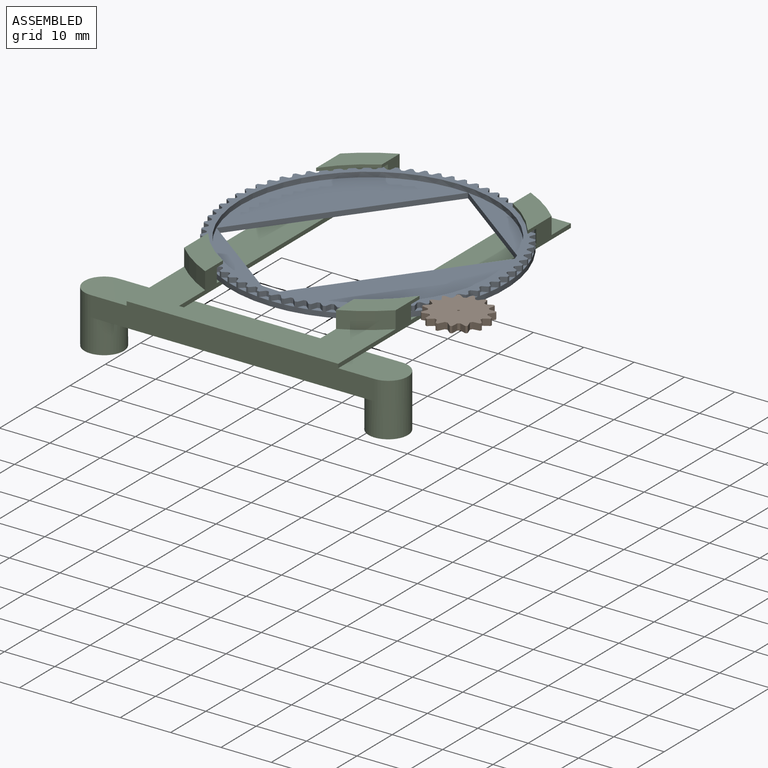
[diagram: assembled view]
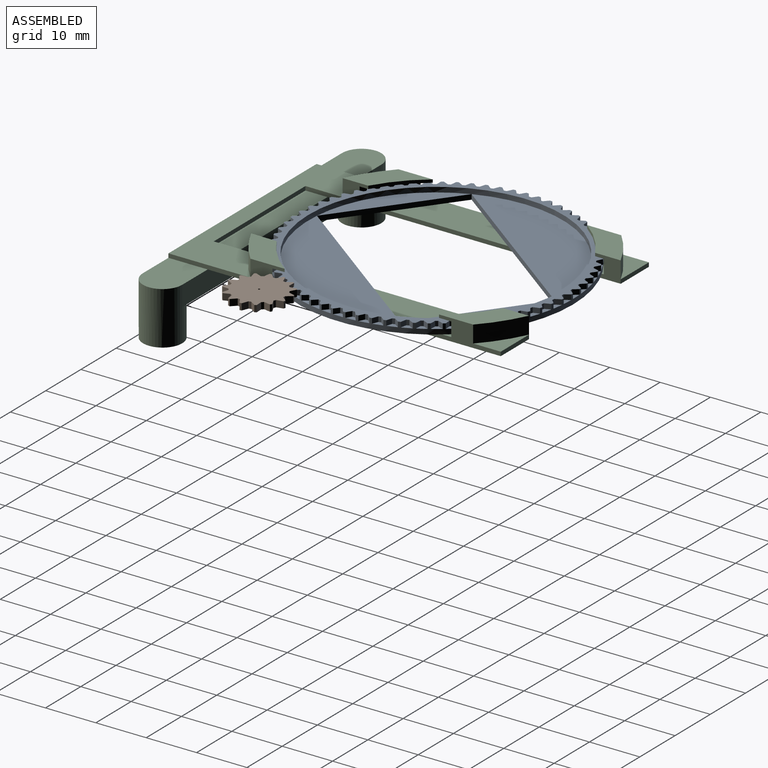
[diagram: assembled view, second angle]
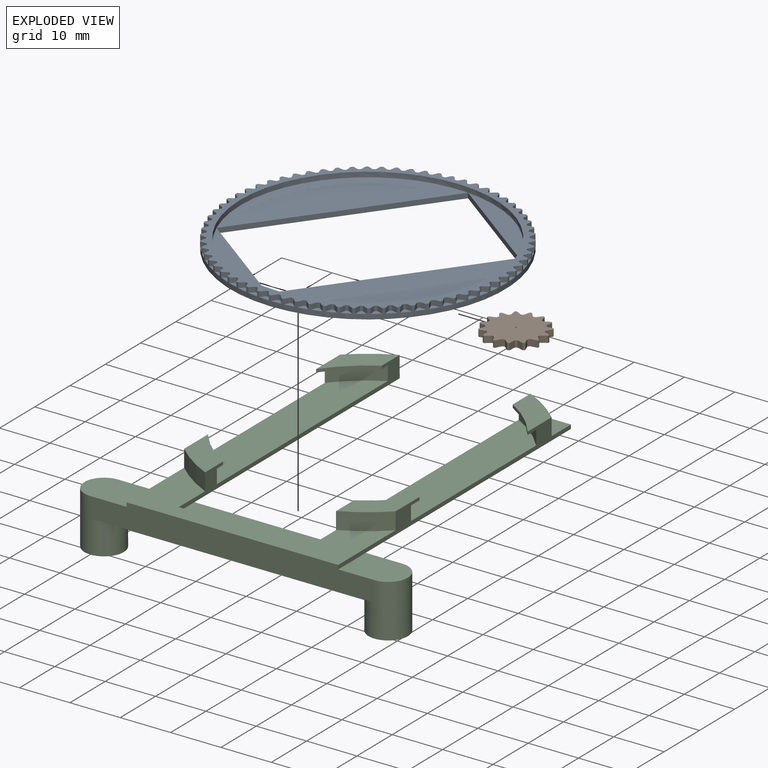
[diagram: exploded view]
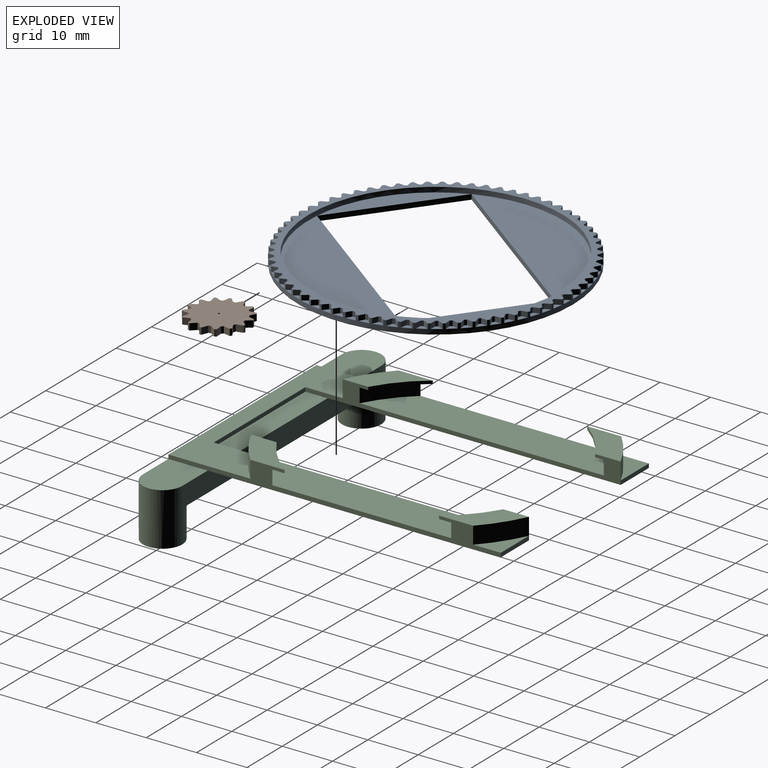
[diagram: exploded view, second angle]
ASSEMBLY  parts=3 mates=2
PART A: 292 faces, bbox 54.6x54.6x2 mm
  f0: cylinder r=27.3mm len=54.6mm, axis (0,0,-1), area 204.9mm2, adj f9,f11,f12,f13,f14,f16,f17,f18
  f1: plane 43.11x12.05mm, normal (0,0,1), area 367.1mm2, adj f6,f10
  f2: plane 26.5x3.75mm, normal (0,0,1), area 67.2mm2, adj f5,f10
  f3: plane 43.11x12.05mm, normal (0,0,1), area 367.1mm2, adj f8,f10
  f4: plane 26.5x3.75mm, normal (0,0,1), area 67.2mm2, adj f7,f10
  f5: plane 26.5x1mm, normal (1,0,0), area 26.5mm2, adj f2,f6,f8,f9
  f6: plane 43.11x1mm, normal (0,-1,0), area 43.1mm2, adj f1,f5,f7,f9
  f7: plane 26.5x1mm, normal (-1,0,0), area 26.5mm2, adj f4,f6,f8,f9
  f8: plane 43.11x1mm, normal (0,1,0), area 43.1mm2, adj f3,f5,f7,f9
  f9: plane 54.6x54.6mm, normal (0,0,-1), area 1199.1mm2, adj f0,f5,f6,f7,f8
  f10: cylinder r=25.3mm len=50.6mm, axis (0,0,-1), area 159mm2, adj f1,f2,f3,f4,f11
  f11: plane 54.6x54.56mm, normal (0,0,1), area 243.8mm2, adj f0,f10,f13,f14,f15,f17,f18,f19
  f12: plane 1.97x1mm, normal (0,0,1), area 1.2mm2, adj f0,f13,f14,f15
  f13: plane 1x0.98mm, normal (0.8,0.6,0), area 1.2mm2, adj f0,f11,f12,f15
  f14: plane 1x0.98mm, normal (-0.8,0.6,0), area 1.2mm2, adj f0,f11,f12,f15
  f15: plane 1x0.5mm, normal (0,1,0), area 0.5mm2, adj f11,f12,f13,f14
  f16: plane 1.97x1.09mm, normal (0,0,1), area 1.2mm2, adj f0,f17,f18,f19
  f17: plane 1x0.91mm, normal (0.74,0.67,0), area 1.2mm2, adj f0,f11,f16,f19
  f18: plane 1.04x1mm, normal (-0.85,0.53,0), area 1.2mm2, adj f0,f11,f16,f19
  f19: plane 1x0.5mm, normal (-0.09,1,0), area 0.5mm2, adj f11,f16,f17,f18
  f20: plane 1.94x1.19mm, normal (0,0,1), area 1.2mm2, adj f0,f21,f22,f23
  f21: plane 1x0.9mm, normal (0.68,0.73,0), area 1.2mm2, adj f0,f11,f20,f23
  f22: plane 1.1x1mm, normal (-0.89,0.45,0), area 1.2mm2, adj f0,f11,f20,f23
  f23: plane 1x0.49mm, normal (-0.18,0.98,0), area 0.5mm2, adj f11,f20,f21,f22
  f24: plane 1.9x1.28mm, normal (0,0,1), area 1.2mm2, adj f0,f25,f26,f27
  f25: plane 1x0.97mm, normal (0.61,0.79,0), area 1.2mm2, adj f0,f11,f24,f27
  f26: plane 1.14x1mm, normal (-0.93,0.37,0), area 1.2mm2, adj f0,f11,f24,f27
  f27: plane 1x0.48mm, normal (-0.27,0.96,0), area 0.5mm2, adj f11,f24,f25,f26
  f28: plane 1.85x1.35mm, normal (0,0,1), area 1.2mm2, adj f0,f29,f30,f31
  f29: plane 1.03x1mm, normal (0.54,0.84,0), area 1.2mm2, adj f0,f11,f28,f31
  f30: plane 1.18x1mm, normal (-0.96,0.28,0), area 1.2mm2, adj f0,f11,f28,f31
  f31: plane 1x0.47mm, normal (-0.35,0.94,0), area 0.5mm2, adj f11,f28,f29,f30
  f32: plane 1.78x1.42mm, normal (0,0,1), area 1.2mm2, adj f0,f33,f34,f35
  f33: plane 1.09x1mm, normal (0.46,0.89,0), area 1.2mm2, adj f0,f11,f32,f35
  f34: plane 1.2x1mm, normal (-0.98,0.19,0), area 1.2mm2, adj f0,f11,f32,f35
  f35: plane 1x0.45mm, normal (-0.43,0.9,0), area 0.5mm2, adj f11,f32,f33,f34
  f36: plane 1.69x1.48mm, normal (0,0,1), area 1.2mm2, adj f0,f37,f38,f39
  f37: plane 1.14x1mm, normal (0.38,0.93,0), area 1.2mm2, adj f0,f11,f36,f39
  f38: plane 1.22x1mm, normal (-0.99,0.1,0), area 1.2mm2, adj f0,f11,f36,f39
  f39: plane 1x0.43mm, normal (-0.51,0.86,0), area 0.5mm2, adj f11,f36,f37,f38
  f40: plane 1.6x1.52mm, normal (0,0,1), area 1.2mm2, adj f0,f41,f42,f43
  f41: plane 1.17x1mm, normal (0.29,0.96,0), area 1.2mm2, adj f0,f11,f40,f43
  f42: plane 1.23x1mm, normal (-1,0.02,0), area 1.2mm2, adj f0,f11,f40,f43
  f43: plane 1x0.4mm, normal (-0.59,0.81,0), area 0.5mm2, adj f11,f40,f41,f42
  f44: plane 1.58x1.55mm, normal (0,0,1), area 1.2mm2, adj f0,f45,f46,f47
  f45: plane 1.2x1mm, normal (0.21,0.98,0), area 1.2mm2, adj f0,f11,f44,f47
  f46: plane 1.22x1mm, normal (-1,-0.07,0), area 1.2mm2, adj f0,f11,f44,f47
  f47: plane 1x0.38mm, normal (-0.66,0.75,0), area 0.5mm2, adj f11,f44,f45,f46
  f48: plane 1.57x1.56mm, normal (0,0,1), area 1.2mm2, adj f0,f49,f50,f51
  f49: plane 1.22x1mm, normal (0.12,0.99,0), area 1.2mm2, adj f0,f11,f48,f51
  f50: plane 1.21x1mm, normal (-0.99,-0.16,0), area 1.2mm2, adj f0,f11,f48,f51
  f51: plane 1x0.36mm, normal (-0.72,0.69,0), area 0.5mm2, adj f11,f48,f49,f50
  f52: plane 1.58x1.54mm, normal (0,0,1), area 1.2mm2, adj f0,f53,f54,f55
  f53: plane 1.23x1mm, normal (0.03,1,0), area 1.2mm2, adj f0,f11,f52,f55
  f54: plane 1.19x1mm, normal (-0.97,-0.25,0), area 1.2mm2, adj f0,f11,f52,f55
  f55: plane 1x0.39mm, normal (-0.78,0.62,0), area 0.5mm2, adj f11,f52,f53,f54
  f56: plane 1.65x1.5mm, normal (0,0,1), area 1.2mm2, adj f0,f57,f58,f59
  f57: plane 1.23x1mm, normal (-0.06,1,0), area 1.2mm2, adj f0,f11,f56,f59
  f58: plane 1.16x1mm, normal (-0.94,-0.34,0), area 1.2mm2, adj f0,f11,f56,f59
  f59: plane 1x0.42mm, normal (-0.83,0.55,0), area 0.5mm2, adj f11,f56,f57,f58
  f60: plane 1.74x1.45mm, normal (0,0,1), area 1.2mm2, adj f0,f61,f62,f63
  f61: plane 1.21x1mm, normal (-0.15,0.99,0), area 1.2mm2, adj f0,f11,f60,f63
  f62: plane 1.11x1mm, normal (-0.91,-0.42,0), area 1.2mm2, adj f0,f11,f60,f63
  f63: plane 1x0.44mm, normal (-0.88,0.47,0), area 0.5mm2, adj f11,f60,f61,f62
  f64: plane 1.81x1.39mm, normal (0,0,1), area 1.2mm2, adj f0,f65,f66,f67
  f65: plane 1.19x1mm, normal (-0.24,0.97,0), area 1.2mm2, adj f0,f11,f64,f67
  f66: plane 1.06x1mm, normal (-0.87,-0.5,0), area 1.2mm2, adj f0,f11,f64,f67
  f67: plane 1x0.46mm, normal (-0.92,0.39,0), area 0.5mm2, adj f11,f64,f65,f66
  f68: plane 1.88x1.32mm, normal (0,0,1), area 1.2mm2, adj f0,f69,f70,f71
  f69: plane 1.16x1mm, normal (-0.32,0.95,0), area 1.2mm2, adj f0,f11,f68,f71
  f70: plane 1x1mm, normal (-0.82,-0.58,0), area 1.2mm2, adj f0,f11,f68,f71
  f71: plane 1x0.48mm, normal (-0.95,0.31,0), area 0.5mm2, adj f11,f68,f69,f70
  f72: plane 1.92x1.23mm, normal (0,0,1), area 1.2mm2, adj f0,f73,f74,f75
  f73: plane 1.12x1mm, normal (-0.41,0.91,0), area 1.2mm2, adj f0,f11,f72,f75
  f74: plane 1x0.94mm, normal (-0.76,-0.65,0), area 1.2mm2, adj f0,f11,f72,f75
  f75: plane 1x0.49mm, normal (-0.97,0.22,0), area 0.5mm2, adj f11,f72,f73,f74
  f76: plane 1.96x1.14mm, normal (0,0,1), area 1.2mm2, adj f0,f77,f78,f79
  f77: plane 1.07x1mm, normal (-0.49,0.87,0), area 1.2mm2, adj f0,f11,f76,f79
  f78: plane 1x0.87mm, normal (-0.7,-0.71,0), area 1.2mm2, adj f0,f11,f76,f79
  f79: plane 1x0.5mm, normal (-0.99,0.13,0), area 0.5mm2, adj f11,f76,f77,f78
  f80: plane 1.97x1.04mm, normal (0,0,1), area 1.2mm2, adj f0,f81,f82,f83
  f81: plane 1.01x1mm, normal (-0.56,0.83,0), area 1.2mm2, adj f0,f11,f80,f83
  f82: plane 1x0.95mm, normal (-0.64,-0.77,0), area 1.2mm2, adj f0,f11,f80,f83
  f83: plane 1x0.5mm, normal (-1,0.04,0), area 0.5mm2, adj f11,f80,f81,f82
  f84: plane 1.97x1.04mm, normal (0,0,1), area 1.2mm2, adj f0,f85,f86,f87
  f85: plane 1x0.95mm, normal (-0.64,0.77,0), area 1.2mm2, adj f0,f11,f84,f87
  f86: plane 1.01x1mm, normal (-0.56,-0.83,0), area 1.2mm2, adj f0,f11,f84,f87
  f87: plane 1x0.5mm, normal (-1,-0.04,0), area 0.5mm2, adj f11,f84,f85,f86
  f88: plane 1.96x1.14mm, normal (0,0,1), area 1.2mm2, adj f0,f89,f90,f91
  f89: plane 1x0.87mm, normal (-0.7,0.71,0), area 1.2mm2, adj f0,f11,f88,f91
  f90: plane 1.07x1mm, normal (-0.49,-0.87,0), area 1.2mm2, adj f0,f11,f88,f91
  f91: plane 1x0.5mm, normal (-0.99,-0.13,0), area 0.5mm2, adj f11,f88,f89,f90
  f92: plane 1.92x1.23mm, normal (0,0,1), area 1.2mm2, adj f0,f93,f94,f95
  f93: plane 1x0.94mm, normal (-0.76,0.65,0), area 1.2mm2, adj f0,f11,f92,f95
  f94: plane 1.12x1mm, normal (-0.41,-0.91,0), area 1.2mm2, adj f0,f11,f92,f95
  f95: plane 1x0.49mm, normal (-0.97,-0.22,0), area 0.5mm2, adj f11,f92,f93,f94
  f96: plane 1.88x1.32mm, normal (0,0,1), area 1.2mm2, adj f0,f97,f98,f99
  f97: plane 1x1mm, normal (-0.82,0.58,0), area 1.2mm2, adj f0,f11,f96,f99
  f98: plane 1.16x1mm, normal (-0.32,-0.95,0), area 1.2mm2, adj f0,f11,f96,f99
  f99: plane 1x0.48mm, normal (-0.95,-0.31,0), area 0.5mm2, adj f11,f96,f97,f98
  f100: plane 1.81x1.39mm, normal (0,0,1), area 1.2mm2, adj f0,f101,f102,f103
  f101: plane 1.06x1mm, normal (-0.87,0.5,0), area 1.2mm2, adj f0,f11,f100,f103
  f102: plane 1.19x1mm, normal (-0.24,-0.97,0), area 1.2mm2, adj f0,f11,f100,f103
  f103: plane 1x0.46mm, normal (-0.92,-0.39,0), area 0.5mm2, adj f11,f100,f101,f102
  f104: plane 1.74x1.45mm, normal (0,0,1), area 1.2mm2, adj f0,f105,f106,f107
  f105: plane 1.11x1mm, normal (-0.91,0.42,0), area 1.2mm2, adj f0,f11,f104,f107
  f106: plane 1.21x1mm, normal (-0.15,-0.99,0), area 1.2mm2, adj f0,f11,f104,f107
  f107: plane 1x0.44mm, normal (-0.88,-0.47,0), area 0.5mm2, adj f11,f104,f105,f106
  f108: plane 1.65x1.5mm, normal (0,0,1), area 1.2mm2, adj f0,f109,f110,f111
  f109: plane 1.16x1mm, normal (-0.94,0.34,0), area 1.2mm2, adj f0,f11,f108,f111
  f110: plane 1.23x1mm, normal (-0.06,-1,0), area 1.2mm2, adj f0,f11,f108,f111
  f111: plane 1x0.42mm, normal (-0.83,-0.55,0), area 0.5mm2, adj f11,f108,f109,f110
  f112: plane 1.58x1.54mm, normal (0,0,1), area 1.2mm2, adj f0,f113,f114,f115
  f113: plane 1.19x1mm, normal (-0.97,0.25,0), area 1.2mm2, adj f0,f11,f112,f115
  f114: plane 1.23x1mm, normal (0.03,-1,0), area 1.2mm2, adj f0,f11,f112,f115
  f115: plane 1x0.39mm, normal (-0.78,-0.62,0), area 0.5mm2, adj f11,f112,f113,f114
  f116: plane 1.57x1.56mm, normal (0,0,1), area 1.2mm2, adj f0,f117,f118,f119
  f117: plane 1.21x1mm, normal (-0.99,0.16,0), area 1.2mm2, adj f0,f11,f116,f119
  f118: plane 1.22x1mm, normal (0.12,-0.99,0), area 1.2mm2, adj f0,f11,f116,f119
  f119: plane 1x0.36mm, normal (-0.72,-0.69,0), area 0.5mm2, adj f11,f116,f117,f118
  f120: plane 1.58x1.55mm, normal (0,0,1), area 1.2mm2, adj f0,f121,f122,f123
  f121: plane 1.22x1mm, normal (-1,0.07,0), area 1.2mm2, adj f0,f11,f120,f123
  f122: plane 1.2x1mm, normal (0.21,-0.98,0), area 1.2mm2, adj f0,f11,f120,f123
  f123: plane 1x0.38mm, normal (-0.66,-0.75,0), area 0.5mm2, adj f11,f120,f121,f122
  f124: plane 1.6x1.52mm, normal (0,0,1), area 1.2mm2, adj f0,f125,f126,f127
  f125: plane 1.23x1mm, normal (-1,-0.02,0), area 1.2mm2, adj f0,f11,f124,f127
  f126: plane 1.17x1mm, normal (0.29,-0.96,0), area 1.2mm2, adj f0,f11,f124,f127
  f127: plane 1x0.4mm, normal (-0.59,-0.81,0), area 0.5mm2, adj f11,f124,f125,f126
  f128: plane 1.69x1.48mm, normal (0,0,1), area 1.2mm2, adj f0,f129,f130,f131
  f129: plane 1.22x1mm, normal (-0.99,-0.1,0), area 1.2mm2, adj f0,f11,f128,f131
  f130: plane 1.14x1mm, normal (0.38,-0.93,0), area 1.2mm2, adj f0,f11,f128,f131
  f131: plane 1x0.43mm, normal (-0.51,-0.86,0), area 0.5mm2, adj f11,f128,f129,f130
  f132: plane 1.78x1.42mm, normal (0,0,1), area 1.2mm2, adj f0,f133,f134,f135
  f133: plane 1.2x1mm, normal (-0.98,-0.19,0), area 1.2mm2, adj f0,f11,f132,f135
  f134: plane 1.09x1mm, normal (0.46,-0.89,0), area 1.2mm2, adj f0,f11,f132,f135
  f135: plane 1x0.45mm, normal (-0.43,-0.9,0), area 0.5mm2, adj f11,f132,f133,f134
  f136: plane 1.85x1.35mm, normal (0,0,1), area 1.2mm2, adj f0,f137,f138,f139
  f137: plane 1.18x1mm, normal (-0.96,-0.28,0), area 1.2mm2, adj f0,f11,f136,f139
  f138: plane 1.03x1mm, normal (0.54,-0.84,0), area 1.2mm2, adj f0,f11,f136,f139
  f139: plane 1x0.47mm, normal (-0.35,-0.94,0), area 0.5mm2, adj f11,f136,f137,f138
  f140: plane 1.9x1.28mm, normal (0,0,1), area 1.2mm2, adj f0,f141,f142,f143
  f141: plane 1.14x1mm, normal (-0.93,-0.37,0), area 1.2mm2, adj f0,f11,f140,f143
  f142: plane 1x0.97mm, normal (0.61,-0.79,0), area 1.2mm2, adj f0,f11,f140,f143
  f143: plane 1x0.48mm, normal (-0.27,-0.96,0), area 0.5mm2, adj f11,f140,f141,f142
  f144: plane 1.94x1.19mm, normal (0,0,1), area 1.2mm2, adj f0,f145,f146,f147
  f145: plane 1.1x1mm, normal (-0.89,-0.45,0), area 1.2mm2, adj f0,f11,f144,f147
  f146: plane 1x0.9mm, normal (0.68,-0.73,0), area 1.2mm2, adj f0,f11,f144,f147
  f147: plane 1x0.49mm, normal (-0.18,-0.98,0), area 0.5mm2, adj f11,f144,f145,f146
  f148: plane 1.97x1.09mm, normal (0,0,1), area 1.2mm2, adj f0,f149,f150,f151
  f149: plane 1.04x1mm, normal (-0.85,-0.53,0), area 1.2mm2, adj f0,f11,f148,f151
  f150: plane 1x0.91mm, normal (0.74,-0.67,0), area 1.2mm2, adj f0,f11,f148,f151
  f151: plane 1x0.5mm, normal (-0.09,-1,0), area 0.5mm2, adj f11,f148,f149,f150
  f152: plane 1.97x1mm, normal (0,0,1), area 1.2mm2, adj f0,f153,f154,f155
  f153: plane 1x0.98mm, normal (-0.8,-0.6,0), area 1.2mm2, adj f0,f11,f152,f155
  f154: plane 1x0.98mm, normal (0.8,-0.6,0), area 1.2mm2, adj f0,f11,f152,f155
  f155: plane 1x0.5mm, normal (0,-1,0), area 0.5mm2, adj f11,f152,f153,f154
  f156: plane 1.97x1.09mm, normal (0,0,1), area 1.2mm2, adj f0,f157,f158,f159
  f157: plane 1x0.91mm, normal (-0.74,-0.67,0), area 1.2mm2, adj f0,f11,f156,f159
  f158: plane 1.04x1mm, normal (0.85,-0.53,0), area 1.2mm2, adj f0,f11,f156,f159
  f159: plane 1x0.5mm, normal (0.09,-1,0), area 0.5mm2, adj f11,f156,f157,f158
  f160: plane 1.94x1.19mm, normal (0,0,1), area 1.2mm2, adj f0,f161,f162,f163
  f161: plane 1x0.9mm, normal (-0.68,-0.73,0), area 1.2mm2, adj f0,f11,f160,f163
  f162: plane 1.1x1mm, normal (0.89,-0.45,0), area 1.2mm2, adj f0,f11,f160,f163
  f163: plane 1x0.49mm, normal (0.18,-0.98,0), area 0.5mm2, adj f11,f160,f161,f162
  f164: plane 1.9x1.28mm, normal (0,0,1), area 1.2mm2, adj f0,f165,f166,f167
  f165: plane 1x0.97mm, normal (-0.61,-0.79,0), area 1.2mm2, adj f0,f11,f164,f167
  f166: plane 1.14x1mm, normal (0.93,-0.37,0), area 1.2mm2, adj f0,f11,f164,f167
  f167: plane 1x0.48mm, normal (0.27,-0.96,0), area 0.5mm2, adj f11,f164,f165,f166
  f168: plane 1.85x1.35mm, normal (0,0,1), area 1.2mm2, adj f0,f169,f170,f171
  f169: plane 1.03x1mm, normal (-0.54,-0.84,0), area 1.2mm2, adj f0,f11,f168,f171
  f170: plane 1.18x1mm, normal (0.96,-0.28,0), area 1.2mm2, adj f0,f11,f168,f171
  f171: plane 1x0.47mm, normal (0.35,-0.94,0), area 0.5mm2, adj f11,f168,f169,f170
  f172: plane 1.78x1.42mm, normal (0,0,1), area 1.2mm2, adj f0,f173,f174,f175
  f173: plane 1.09x1mm, normal (-0.46,-0.89,0), area 1.2mm2, adj f0,f11,f172,f175
  f174: plane 1.2x1mm, normal (0.98,-0.19,0), area 1.2mm2, adj f0,f11,f172,f175
  f175: plane 1x0.45mm, normal (0.43,-0.9,0), area 0.5mm2, adj f11,f172,f173,f174
  f176: plane 1.69x1.48mm, normal (0,0,1), area 1.2mm2, adj f0,f177,f178,f179
  f177: plane 1.14x1mm, normal (-0.38,-0.93,0), area 1.2mm2, adj f0,f11,f176,f179
  f178: plane 1.22x1mm, normal (0.99,-0.1,0), area 1.2mm2, adj f0,f11,f176,f179
  f179: plane 1x0.43mm, normal (0.51,-0.86,0), area 0.5mm2, adj f11,f176,f177,f178
  f180: plane 1.6x1.52mm, normal (0,0,1), area 1.2mm2, adj f0,f181,f182,f183
  f181: plane 1.17x1mm, normal (-0.29,-0.96,0), area 1.2mm2, adj f0,f11,f180,f183
  f182: plane 1.23x1mm, normal (1,-0.02,0), area 1.2mm2, adj f0,f11,f180,f183
  f183: plane 1x0.4mm, normal (0.59,-0.81,0), area 0.5mm2, adj f11,f180,f181,f182
  f184: plane 1.58x1.55mm, normal (0,0,1), area 1.2mm2, adj f0,f185,f186,f187
  f185: plane 1.2x1mm, normal (-0.21,-0.98,0), area 1.2mm2, adj f0,f11,f184,f187
  f186: plane 1.22x1mm, normal (1,0.07,0), area 1.2mm2, adj f0,f11,f184,f187
  f187: plane 1x0.38mm, normal (0.66,-0.75,0), area 0.5mm2, adj f11,f184,f185,f186
  f188: plane 1.57x1.56mm, normal (0,0,1), area 1.2mm2, adj f0,f189,f190,f191
  f189: plane 1.22x1mm, normal (-0.12,-0.99,0), area 1.2mm2, adj f0,f11,f188,f191
  f190: plane 1.21x1mm, normal (0.99,0.16,0), area 1.2mm2, adj f0,f11,f188,f191
  f191: plane 1x0.36mm, normal (0.72,-0.69,0), area 0.5mm2, adj f11,f188,f189,f190
  f192: plane 1.58x1.54mm, normal (0,0,1), area 1.2mm2, adj f0,f193,f194,f195
  f193: plane 1.23x1mm, normal (-0.03,-1,0), area 1.2mm2, adj f0,f11,f192,f195
  f194: plane 1.19x1mm, normal (0.97,0.25,0), area 1.2mm2, adj f0,f11,f192,f195
  f195: plane 1x0.39mm, normal (0.78,-0.62,0), area 0.5mm2, adj f11,f192,f193,f194
  f196: plane 1.65x1.5mm, normal (0,0,1), area 1.2mm2, adj f0,f197,f198,f199
  f197: plane 1.23x1mm, normal (0.06,-1,0), area 1.2mm2, adj f0,f11,f196,f199
  f198: plane 1.16x1mm, normal (0.94,0.34,0), area 1.2mm2, adj f0,f11,f196,f199
  f199: plane 1x0.42mm, normal (0.83,-0.55,0), area 0.5mm2, adj f11,f196,f197,f198
  f200: plane 1.74x1.45mm, normal (0,0,1), area 1.2mm2, adj f0,f201,f202,f203
  f201: plane 1.21x1mm, normal (0.15,-0.99,0), area 1.2mm2, adj f0,f11,f200,f203
  f202: plane 1.11x1mm, normal (0.91,0.42,0), area 1.2mm2, adj f0,f11,f200,f203
  f203: plane 1x0.44mm, normal (0.88,-0.47,0), area 0.5mm2, adj f11,f200,f201,f202
  f204: plane 1.81x1.39mm, normal (0,0,1), area 1.2mm2, adj f0,f205,f206,f207
  f205: plane 1.19x1mm, normal (0.24,-0.97,0), area 1.2mm2, adj f0,f11,f204,f207
  f206: plane 1.06x1mm, normal (0.87,0.5,0), area 1.2mm2, adj f0,f11,f204,f207
  f207: plane 1x0.46mm, normal (0.92,-0.39,0), area 0.5mm2, adj f11,f204,f205,f206
  f208: plane 1.88x1.32mm, normal (0,0,1), area 1.2mm2, adj f0,f209,f210,f211
  f209: plane 1.16x1mm, normal (0.32,-0.95,0), area 1.2mm2, adj f0,f11,f208,f211
  f210: plane 1x1mm, normal (0.82,0.58,0), area 1.2mm2, adj f0,f11,f208,f211
  f211: plane 1x0.48mm, normal (0.95,-0.31,0), area 0.5mm2, adj f11,f208,f209,f210
  f212: plane 1.92x1.23mm, normal (0,0,1), area 1.2mm2, adj f0,f213,f214,f215
  f213: plane 1.12x1mm, normal (0.41,-0.91,0), area 1.2mm2, adj f0,f11,f212,f215
  f214: plane 1x0.94mm, normal (0.76,0.65,0), area 1.2mm2, adj f0,f11,f212,f215
  f215: plane 1x0.49mm, normal (0.97,-0.22,0), area 0.5mm2, adj f11,f212,f213,f214
  f216: plane 1.96x1.14mm, normal (0,0,1), area 1.2mm2, adj f0,f217,f218,f219
  f217: plane 1.07x1mm, normal (0.49,-0.87,0), area 1.2mm2, adj f0,f11,f216,f219
  f218: plane 1x0.87mm, normal (0.7,0.71,0), area 1.2mm2, adj f0,f11,f216,f219
  f219: plane 1x0.5mm, normal (0.99,-0.13,0), area 0.5mm2, adj f11,f216,f217,f218
  f220: plane 1.97x1.04mm, normal (0,0,1), area 1.2mm2, adj f0,f221,f222,f223
  f221: plane 1.01x1mm, normal (0.56,-0.83,0), area 1.2mm2, adj f0,f11,f220,f223
  f222: plane 1x0.95mm, normal (0.64,0.77,0), area 1.2mm2, adj f0,f11,f220,f223
  f223: plane 1x0.5mm, normal (1,-0.04,0), area 0.5mm2, adj f11,f220,f221,f222
  f224: plane 1.97x1.04mm, normal (0,0,1), area 1.2mm2, adj f0,f225,f226,f227
  f225: plane 1x0.95mm, normal (0.64,-0.77,0), area 1.2mm2, adj f0,f11,f224,f227
  f226: plane 1.01x1mm, normal (0.56,0.83,0), area 1.2mm2, adj f0,f11,f224,f227
  f227: plane 1x0.5mm, normal (1,0.04,0), area 0.5mm2, adj f11,f224,f225,f226
  f228: plane 1.96x1.14mm, normal (0,0,1), area 1.2mm2, adj f0,f229,f230,f231
  f229: plane 1x0.87mm, normal (0.7,-0.71,0), area 1.2mm2, adj f0,f11,f228,f231
  f230: plane 1.07x1mm, normal (0.49,0.87,0), area 1.2mm2, adj f0,f11,f228,f231
  f231: plane 1x0.5mm, normal (0.99,0.13,0), area 0.5mm2, adj f11,f228,f229,f230
  f232: plane 1.92x1.23mm, normal (0,0,1), area 1.2mm2, adj f0,f233,f234,f235
  f233: plane 1x0.94mm, normal (0.76,-0.65,0), area 1.2mm2, adj f0,f11,f232,f235
  f234: plane 1.12x1mm, normal (0.41,0.91,0), area 1.2mm2, adj f0,f11,f232,f235
  f235: plane 1x0.49mm, normal (0.97,0.22,0), area 0.5mm2, adj f11,f232,f233,f234
  f236: plane 1.88x1.32mm, normal (0,0,1), area 1.2mm2, adj f0,f237,f238,f239
  f237: plane 1x1mm, normal (0.82,-0.58,0), area 1.2mm2, adj f0,f11,f236,f239
  f238: plane 1.16x1mm, normal (0.32,0.95,0), area 1.2mm2, adj f0,f11,f236,f239
  f239: plane 1x0.48mm, normal (0.95,0.31,0), area 0.5mm2, adj f11,f236,f237,f238
  f240: plane 1.81x1.39mm, normal (0,0,1), area 1.2mm2, adj f0,f241,f242,f243
  f241: plane 1.06x1mm, normal (0.87,-0.5,0), area 1.2mm2, adj f0,f11,f240,f243
  f242: plane 1.19x1mm, normal (0.24,0.97,0), area 1.2mm2, adj f0,f11,f240,f243
  f243: plane 1x0.46mm, normal (0.92,0.39,0), area 0.5mm2, adj f11,f240,f241,f242
  f244: plane 1.74x1.45mm, normal (0,0,1), area 1.2mm2, adj f0,f245,f246,f247
  f245: plane 1.11x1mm, normal (0.91,-0.42,0), area 1.2mm2, adj f0,f11,f244,f247
  f246: plane 1.21x1mm, normal (0.15,0.99,0), area 1.2mm2, adj f0,f11,f244,f247
  f247: plane 1x0.44mm, normal (0.88,0.47,0), area 0.5mm2, adj f11,f244,f245,f246
  f248: plane 1.65x1.5mm, normal (0,0,1), area 1.2mm2, adj f0,f249,f250,f251
  f249: plane 1.16x1mm, normal (0.94,-0.34,0), area 1.2mm2, adj f0,f11,f248,f251
  f250: plane 1.23x1mm, normal (0.06,1,0), area 1.2mm2, adj f0,f11,f248,f251
  f251: plane 1x0.42mm, normal (0.83,0.55,0), area 0.5mm2, adj f11,f248,f249,f250
  f252: plane 1.58x1.54mm, normal (0,0,1), area 1.2mm2, adj f0,f253,f254,f255
  f253: plane 1.19x1mm, normal (0.97,-0.25,0), area 1.2mm2, adj f0,f11,f252,f255
  f254: plane 1.23x1mm, normal (-0.03,1,0), area 1.2mm2, adj f0,f11,f252,f255
  f255: plane 1x0.39mm, normal (0.78,0.62,0), area 0.5mm2, adj f11,f252,f253,f254
  f256: plane 1.57x1.56mm, normal (0,0,1), area 1.2mm2, adj f0,f257,f258,f259
  f257: plane 1.21x1mm, normal (0.99,-0.16,0), area 1.2mm2, adj f0,f11,f256,f259
  f258: plane 1.22x1mm, normal (-0.12,0.99,0), area 1.2mm2, adj f0,f11,f256,f259
  f259: plane 1x0.36mm, normal (0.72,0.69,0), area 0.5mm2, adj f11,f256,f257,f258
  f260: plane 1.58x1.55mm, normal (0,0,1), area 1.2mm2, adj f0,f261,f262,f263
  f261: plane 1.22x1mm, normal (1,-0.07,0), area 1.2mm2, adj f0,f11,f260,f263
  f262: plane 1.2x1mm, normal (-0.21,0.98,0), area 1.2mm2, adj f0,f11,f260,f263
  f263: plane 1x0.38mm, normal (0.66,0.75,0), area 0.5mm2, adj f11,f260,f261,f262
  f264: plane 1.6x1.52mm, normal (0,0,1), area 1.2mm2, adj f0,f265,f266,f267
  f265: plane 1.23x1mm, normal (1,0.02,0), area 1.2mm2, adj f0,f11,f264,f267
  f266: plane 1.17x1mm, normal (-0.29,0.96,0), area 1.2mm2, adj f0,f11,f264,f267
  f267: plane 1x0.4mm, normal (0.59,0.81,0), area 0.5mm2, adj f11,f264,f265,f266
  f268: plane 1.69x1.48mm, normal (0,0,1), area 1.2mm2, adj f0,f269,f270,f271
  f269: plane 1.22x1mm, normal (0.99,0.1,0), area 1.2mm2, adj f0,f11,f268,f271
  f270: plane 1.14x1mm, normal (-0.38,0.93,0), area 1.2mm2, adj f0,f11,f268,f271
  f271: plane 1x0.43mm, normal (0.51,0.86,0), area 0.5mm2, adj f11,f268,f269,f270
  f272: plane 1.78x1.42mm, normal (0,0,1), area 1.2mm2, adj f0,f273,f274,f275
  f273: plane 1.2x1mm, normal (0.98,0.19,0), area 1.2mm2, adj f0,f11,f272,f275
  f274: plane 1.09x1mm, normal (-0.46,0.89,0), area 1.2mm2, adj f0,f11,f272,f275
  f275: plane 1x0.45mm, normal (0.43,0.9,0), area 0.5mm2, adj f11,f272,f273,f274
  f276: plane 1.85x1.35mm, normal (0,0,1), area 1.2mm2, adj f0,f277,f278,f279
  f277: plane 1.18x1mm, normal (0.96,0.28,0), area 1.2mm2, adj f0,f11,f276,f279
  f278: plane 1.03x1mm, normal (-0.54,0.84,0), area 1.2mm2, adj f0,f11,f276,f279
  f279: plane 1x0.47mm, normal (0.35,0.94,0), area 0.5mm2, adj f11,f276,f277,f278
  f280: plane 1.9x1.28mm, normal (0,0,1), area 1.2mm2, adj f0,f281,f282,f283
  f281: plane 1.14x1mm, normal (0.93,0.37,0), area 1.2mm2, adj f0,f11,f280,f283
  f282: plane 1x0.97mm, normal (-0.61,0.79,0), area 1.2mm2, adj f0,f11,f280,f283
  f283: plane 1x0.48mm, normal (0.27,0.96,0), area 0.5mm2, adj f11,f280,f281,f282
  f284: plane 1.94x1.19mm, normal (0,0,1), area 1.2mm2, adj f0,f285,f286,f287
  f285: plane 1.1x1mm, normal (0.89,0.45,0), area 1.2mm2, adj f0,f11,f284,f287
  f286: plane 1x0.9mm, normal (-0.68,0.73,0), area 1.2mm2, adj f0,f11,f284,f287
  f287: plane 1x0.49mm, normal (0.18,0.98,0), area 0.5mm2, adj f11,f284,f285,f286
  f288: plane 1.97x1.09mm, normal (0,0,1), area 1.2mm2, adj f0,f289,f290,f291
  f289: plane 1.04x1mm, normal (0.85,0.53,0), area 1.2mm2, adj f0,f11,f288,f291
  f290: plane 1x0.91mm, normal (-0.74,0.67,0), area 1.2mm2, adj f0,f11,f288,f291
  f291: plane 1x0.5mm, normal (0.09,1,0), area 0.5mm2, adj f11,f288,f289,f290
PART B: 63 faces, bbox 12.2x12.2x1.3 mm
  f0: cylinder r=5mm len=1.3mm, axis (0,0,-1), area 0.6mm2, adj f16,f17,f57,f62
  f1: cylinder r=5mm len=1.3mm, axis (0,0,-1), area 0.6mm2, adj f16,f17,f20,f60
  f2: cylinder r=5mm len=1.3mm, axis (0,0,-1), area 0.6mm2, adj f16,f17,f54,f59
  f3: cylinder r=5mm len=1.3mm, axis (0,0,-1), area 0.6mm2, adj f16,f17,f51,f56
  f4: cylinder r=5mm len=1.3mm, axis (0,0,-1), area 0.6mm2, adj f16,f17,f48,f53
  f5: cylinder r=5mm len=1.3mm, axis (0,0,-1), area 0.6mm2, adj f16,f17,f45,f50
  f6: cylinder r=5mm len=1.3mm, axis (0,0,-1), area 0.6mm2, adj f16,f17,f42,f47
  f7: cylinder r=5mm len=1.3mm, axis (0,0,-1), area 0.6mm2, adj f16,f17,f39,f44
  f8: cylinder r=5mm len=1.3mm, axis (0,0,-1), area 0.6mm2, adj f16,f17,f36,f41
  f9: cylinder r=5mm len=1.3mm, axis (0,0,-1), area 0.6mm2, adj f16,f17,f33,f38
  f10: cylinder r=5mm len=1.3mm, axis (0,0,-1), area 0.6mm2, adj f16,f17,f30,f35
  f11: cylinder r=5mm len=1.3mm, axis (0,0,-1), area 0.6mm2, adj f16,f17,f27,f32
  f12: cylinder r=5mm len=1.3mm, axis (0,0,-1), area 0.6mm2, adj f16,f17,f24,f29
  f13: cylinder r=5mm len=1.3mm, axis (0,0,-1), area 0.6mm2, adj f16,f17,f21,f26
  f14: cylinder r=5mm len=1.3mm, axis (0,0,-1), area 0.6mm2, adj f16,f17,f18,f23
  f15: cylinder r=0.2mm len=1.3mm, axis (0,0,-1), area 1.6mm2, adj f16,f17
  f16: plane 12.25x12.18mm, normal (0,0,1), area 95.4mm2, adj f0,f1,f2,f3,f4,f5,f6,f7
  f17: plane 12.25x12.18mm, normal (0,0,-1), area 95.4mm2, adj f0,f1,f2,f3,f4,f5,f6,f7
  f18: plane 1.3x1.2mm, normal (-0.89,0.45,0), area 1.7mm2, adj f14,f16,f17,f19
  f19: plane 1.3x0.4mm, normal (0,1,0), area 0.5mm2, adj f16,f17,f18,f20
  f20: plane 1.3x1.2mm, normal (0.89,0.45,0), area 1.7mm2, adj f1,f16,f17,f19
  f21: plane 1.34x1.3mm, normal (-1,0.04,0), area 1.7mm2, adj f13,f16,f17,f22
  f22: plane 1.3x0.37mm, normal (-0.41,0.91,0), area 0.5mm2, adj f16,f17,f21,f23
  f23: plane 1.3x1.04mm, normal (0.64,0.77,0), area 1.7mm2, adj f14,f16,f17,f22
  f24: plane 1.3x1.25mm, normal (-0.93,-0.37,0), area 1.7mm2, adj f12,f16,f17,f25
  f25: plane 1.3x0.3mm, normal (-0.74,0.67,0), area 0.5mm2, adj f16,f17,f24,f26
  f26: plane 1.3x1.29mm, normal (0.27,0.96,0), area 1.7mm2, adj f13,f16,f17,f25
  f27: plane 1.3x0.96mm, normal (-0.7,-0.71,0), area 1.7mm2, adj f11,f16,f17,f28
  f28: plane 1.3x0.38mm, normal (-0.95,0.31,0), area 0.5mm2, adj f16,f17,f27,f29
  f29: plane 1.33x1.3mm, normal (-0.15,0.99,0), area 1.7mm2, adj f12,f16,f17,f28
  f30: plane 1.3x1.26mm, normal (-0.35,-0.94,0), area 1.7mm2, adj f10,f16,f17,f31
  f31: plane 1.3x0.4mm, normal (-0.99,-0.1,0), area 0.5mm2, adj f16,f17,f30,f32
  f32: plane 1.3x1.13mm, normal (-0.54,0.84,0), area 1.7mm2, adj f11,f16,f17,f31
  f33: plane 1.34x1.3mm, normal (0.06,-1,0), area 1.7mm2, adj f9,f16,f17,f34
  f34: plane 1.3x0.35mm, normal (-0.87,-0.5,0), area 0.5mm2, adj f16,f17,f33,f35
  f35: plane 1.3x1.12mm, normal (-0.83,0.55,0), area 1.7mm2, adj f10,f16,f17,f34
  f36: plane 1.3x1.19mm, normal (0.46,-0.89,0), area 1.7mm2, adj f8,f16,f17,f37
  f37: plane 1.3x0.32mm, normal (-0.59,-0.81,0), area 0.5mm2, adj f16,f17,f36,f38
  f38: plane 1.32x1.3mm, normal (-0.99,0.16,0), area 1.7mm2, adj f9,f16,f17,f37
  f39: plane 1.3x1.05mm, normal (0.78,-0.62,0), area 1.7mm2, adj f7,f16,f17,f40
  f40: plane 1.3x0.39mm, normal (-0.21,-0.98,0), area 0.5mm2, adj f16,f17,f39,f41
  f41: plane 1.3x1.3mm, normal (-0.97,-0.25,0), area 1.7mm2, adj f8,f16,f17,f40
  f42: plane 1.3x1.3mm, normal (0.97,-0.25,0), area 1.7mm2, adj f6,f16,f17,f43
  f43: plane 1.3x0.39mm, normal (0.21,-0.98,0), area 0.5mm2, adj f16,f17,f42,f44
  f44: plane 1.3x1.05mm, normal (-0.78,-0.62,0), area 1.7mm2, adj f7,f16,f17,f43
  f45: plane 1.32x1.3mm, normal (0.99,0.16,0), area 1.7mm2, adj f5,f16,f17,f46
  f46: plane 1.3x0.32mm, normal (0.59,-0.81,0), area 0.5mm2, adj f16,f17,f45,f47
  f47: plane 1.3x1.19mm, normal (-0.46,-0.89,0), area 1.7mm2, adj f6,f16,f17,f46
  f48: plane 1.3x1.12mm, normal (0.83,0.55,0), area 1.7mm2, adj f4,f16,f17,f49
  f49: plane 1.3x0.35mm, normal (0.87,-0.5,0), area 0.5mm2, adj f16,f17,f48,f50
  f50: plane 1.34x1.3mm, normal (-0.06,-1,0), area 1.7mm2, adj f5,f16,f17,f49
  f51: plane 1.3x1.13mm, normal (0.54,0.84,0), area 1.7mm2, adj f3,f16,f17,f52
  f52: plane 1.3x0.4mm, normal (0.99,-0.1,0), area 0.5mm2, adj f16,f17,f51,f53
  f53: plane 1.3x1.26mm, normal (0.35,-0.94,0), area 1.7mm2, adj f4,f16,f17,f52
  f54: plane 1.33x1.3mm, normal (0.15,0.99,0), area 1.7mm2, adj f2,f16,f17,f55
  f55: plane 1.3x0.38mm, normal (0.95,0.31,0), area 0.5mm2, adj f16,f17,f54,f56
  f56: plane 1.3x0.96mm, normal (0.7,-0.71,0), area 1.7mm2, adj f3,f16,f17,f55
  f57: plane 1.3x1.29mm, normal (-0.27,0.96,0), area 1.7mm2, adj f0,f16,f17,f58
  f58: plane 1.3x0.3mm, normal (0.74,0.67,0), area 0.5mm2, adj f16,f17,f57,f59
  f59: plane 1.3x1.25mm, normal (0.93,-0.37,0), area 1.7mm2, adj f2,f16,f17,f58
  f60: plane 1.3x1.04mm, normal (-0.64,0.77,0), area 1.7mm2, adj f1,f16,f17,f61
  f61: plane 1.3x0.37mm, normal (0.41,0.91,0), area 0.5mm2, adj f16,f17,f60,f62
  f62: plane 1.34x1.3mm, normal (1,0.04,0), area 1.7mm2, adj f0,f16,f17,f61
PART C: 44 faces, bbox 64.2x66x14.7 mm
  f0: plane 8x5.48mm, normal (0,0,1), area 19.5mm2, adj f17,f18,f19,f30
  f1: plane 42x16.28mm, normal (0,0,1), area 300.1mm2, adj f10,f16,f17,f19,f20,f21,f25,f28
  f2: plane 8x5.48mm, normal (0,0,1), area 19.5mm2, adj f15,f16,f21,f27
  f3: plane 48.47x8mm, normal (0,0,1), area 342.6mm2, adj f16,f21,f24,f26
  f4: plane 26x4.4mm, normal (0,0,1), area 114.4mm2, adj f11,f19,f20,f21
  f5: plane 11.12x7.8mm, normal (0,0,1), area 80.2mm2, adj f8,f10,f11,f17
  f6: cylinder r=3.9mm len=10.5mm, axis (0,0,-1), area 208.3mm2, adj f7,f10,f11,f12,f13
  f7: plane 7.8x7.8mm, normal (0,0,-1), area 47.8mm2, adj f6
  f8: cylinder r=3.9mm len=10.5mm, axis (0,0,-1), area 208.3mm2, adj f5,f9,f10,f11,f13
  f9: plane 7.8x7.8mm, normal (0,0,-1), area 47.8mm2, adj f8
  f10: plane 56.43x4.8mm, normal (0,-1,0), area 259.3mm2, adj f1,f5,f6,f8,f12,f13,f16,f17
  f11: plane 56.43x4mm, normal (0,1,0), area 225.7mm2, adj f4,f5,f6,f8,f12,f13,f14,f23
  f12: plane 11.12x7.8mm, normal (0,0,1), area 80.2mm2, adj f6,f10,f11,f16
  f13: plane 56.43x7.8mm, normal (0,0,-1), area 392.4mm2, adj f6,f8,f10,f11
  f14: plane 58.2x8mm, normal (0,0,-1), area 465.6mm2, adj f11,f15,f16,f21
  f15: plane 8x0.8mm, normal (0,1,0), area 6.4mm2, adj f2,f14,f16,f21
  f16: plane 66x4.2mm, normal (-1,0,0), area 85.4mm2, adj f1,f2,f3,f10,f12,f14,f15,f24
  f17: plane 66x4.2mm, normal (1,0,0), area 85.4mm2, adj f0,f1,f5,f10,f18,f22,f23,f28
  f18: plane 8x0.8mm, normal (0,1,0), area 6.4mm2, adj f0,f17,f19,f23
  f19: plane 62.6x4.2mm, normal (-1,0,0), area 75mm2, adj f0,f1,f4,f18,f20,f22,f23,f28
  f20: plane 26x0.8mm, normal (0,1,0), area 20.8mm2, adj f1,f4,f19,f21
  f21: plane 62.6x4.2mm, normal (1,0,0), area 75mm2, adj f1,f2,f3,f4,f14,f15,f20,f24
  f22: plane 48.47x8mm, normal (0,0,1), area 342.6mm2, adj f17,f19,f29,f31
  f23: plane 58.2x8mm, normal (0,0,-1), area 465.6mm2, adj f11,f17,f18,f19
  f24: cylinder r=27.5mm len=8mm, axis (0,0,-1), area 29mm2, adj f3,f16,f21,f32
  f25: cylinder r=30.5mm len=8mm, axis (0,0,-1), area 33.1mm2, adj f1,f16,f21,f34
  f26: cylinder r=27.5mm len=8mm, axis (0,0,-1), area 29mm2, adj f3,f16,f21,f35
  f27: cylinder r=30.5mm len=8mm, axis (0,0,-1), area 33.1mm2, adj f2,f16,f21,f37
  f28: cylinder r=30.5mm len=8mm, axis (0,0,-1), area 33.1mm2, adj f1,f17,f19,f43
  f29: cylinder r=27.5mm len=8mm, axis (0,0,-1), area 29mm2, adj f17,f19,f22,f41
  f30: cylinder r=30.5mm len=8mm, axis (0,0,-1), area 33.1mm2, adj f0,f17,f19,f40
  f31: cylinder r=27.5mm len=8mm, axis (0,0,-1), area 29mm2, adj f17,f19,f22,f38
  f32: plane 8.9x8mm, normal (0,0,-1), area 15.9mm2, adj f16,f21,f24,f33
  f33: cylinder r=26mm len=8mm, axis (0,0,-1), area 6.5mm2, adj f16,f21,f32,f34
  f34: plane 12.26x8mm, normal (0,0,1), area 45.9mm2, adj f16,f21,f25,f33
  f35: plane 8.9x8mm, normal (0,0,-1), area 15.9mm2, adj f16,f21,f26,f36
  f36: cylinder r=26mm len=8mm, axis (0,0,-1), area 6.5mm2, adj f16,f21,f35,f37
  f37: plane 12.26x8mm, normal (0,0,1), area 45.9mm2, adj f16,f21,f27,f36
  f38: plane 8.9x8mm, normal (0,0,-1), area 15.9mm2, adj f17,f19,f31,f39
  f39: cylinder r=26mm len=8mm, axis (0,0,-1), area 6.5mm2, adj f17,f19,f38,f40
  f40: plane 12.26x8mm, normal (0,0,1), area 45.9mm2, adj f17,f19,f30,f39
  f41: plane 8.9x8mm, normal (0,0,-1), area 15.9mm2, adj f17,f19,f29,f42
  f42: cylinder r=26mm len=8mm, axis (0,0,-1), area 6.5mm2, adj f17,f19,f41,f43
  f43: plane 12.26x8mm, normal (0,0,1), area 45.9mm2, adj f17,f19,f28,f42
PLACE A rot(axis=(0,0,-1),126.7deg) t=(0,34.5,5.2)mm
PLACE B rot(axis=(0,0,-1),36.7deg) t=(28.56,19.43,6.2)mm
PLACE C t=(0,0,-6.5)mm
MATE cylindrical A.f0 <-> C.f29  axis (0,0,-1) through (0,34.5,6.2)mm
MATE planar B.f0 <-> A.f184  axis (0,0,-1) through (28.56,19.43,6.2)mm
